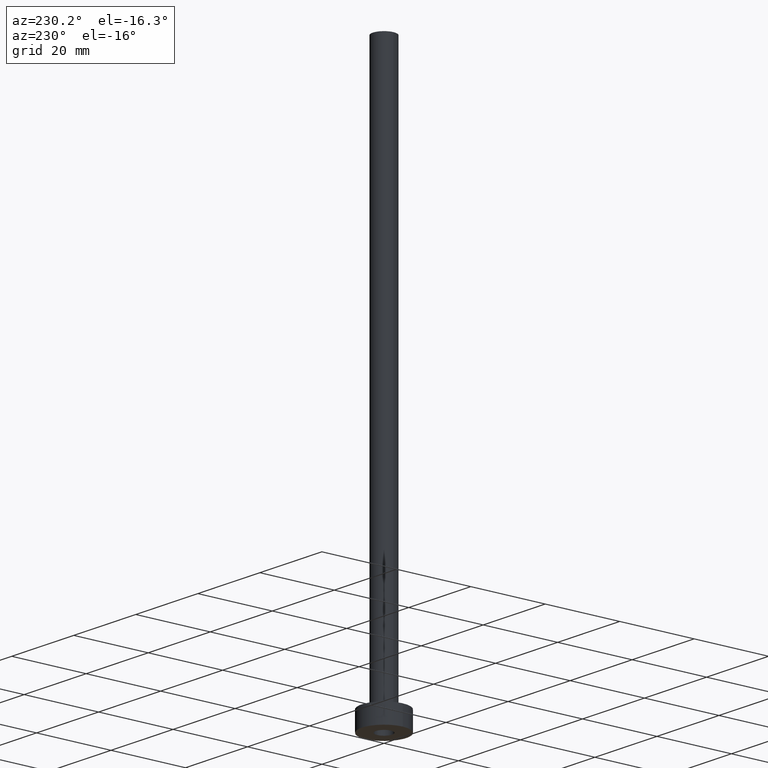
[diagram: clean part render]
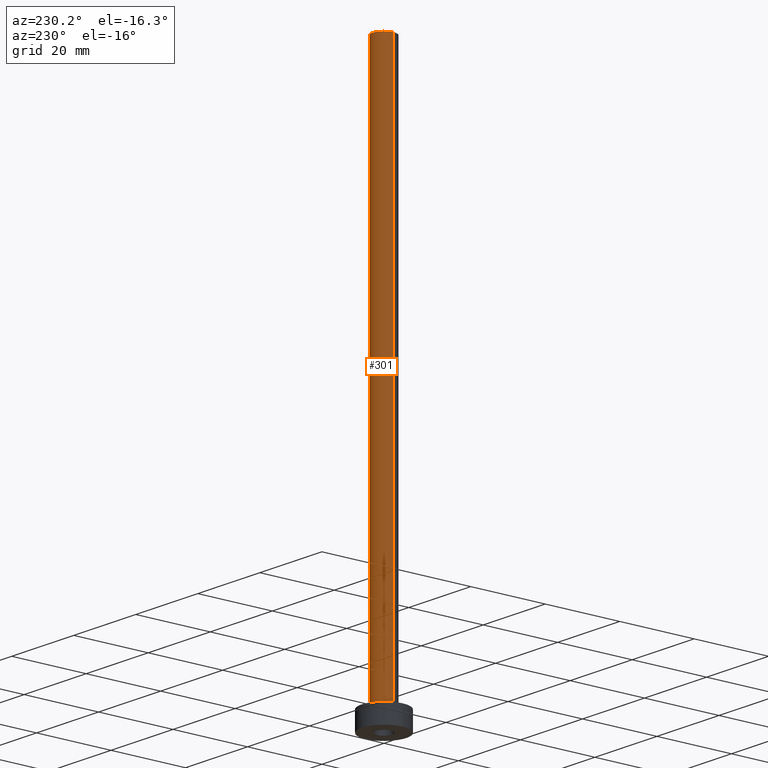
[diagram: same view with one face highlighted and labeled with its STEP entity id]
A machine part, auxiliary view. The second image highlights one B-rep face of the part: STEP entity #301.
In plain terms, the highlighted cylindrical surface (edge-blend (fillet) strip) has radius 3 mm, axis along (-0, -0, -1).
Its self-contained STEP definition (entity closure, byte-faithful):
#11 = CARTESIAN_POINT ( 'NONE',  ( 0.000000000000000000, 0.000000000000000000, 150.0000000000000000 ) ) ;
#25 = ORIENTED_EDGE ( 'NONE', *, *, #188, .T. ) ;
#37 = CARTESIAN_POINT ( 'NONE',  ( -3.000000000000000444, 0.000000000000000000, 5.500000000000005329 ) ) ;
#45 = CYLINDRICAL_SURFACE ( 'NONE', #158, 3.000000000000000444 ) ;
#56 = DIRECTION ( 'NONE',  ( 0.000000000000000000, 0.000000000000000000, 1.000000000000000000 ) ) ;
#57 = VERTEX_POINT ( 'NONE', #37 ) ;
#69 = DIRECTION ( 'NONE',  ( -0.000000000000000000, -0.000000000000000000, -1.000000000000000000 ) ) ;
#87 = CARTESIAN_POINT ( 'NONE',  ( -3.000000000000000444, 0.000000000000000000, 150.0000000000000000 ) ) ;
#119 = VERTEX_POINT ( 'NONE', #267 ) ;
#142 = CIRCLE ( 'NONE', #230, 3.000000000000000444 ) ;
#158 = AXIS2_PLACEMENT_3D ( 'NONE', #11, #311, #305 ) ;
#164 = AXIS2_PLACEMENT_3D ( 'NONE', #286, #404, #432 ) ;
#188 = EDGE_CURVE ( 'NONE', #271, #57, #142, .T. ) ;
#202 = LINE ( 'NONE', #280, #222 ) ;
#207 = CARTESIAN_POINT ( 'NONE',  ( -3.000000000000000444, 0.000000000000000000, 150.0000000000000000 ) ) ;
#218 = DIRECTION ( 'NONE',  ( 1.000000000000000000, 0.000000000000000000, 0.000000000000000000 ) ) ;
#220 = EDGE_CURVE ( 'NONE', #119, #271, #202, .T. ) ;
#222 = VECTOR ( 'NONE', #69, 1000.000000000000000 ) ;
#230 = AXIS2_PLACEMENT_3D ( 'NONE', #306, #56, #218 ) ;
#247 = EDGE_CURVE ( 'NONE', #119, #261, #292, .T. ) ;
#261 = VERTEX_POINT ( 'NONE', #207 ) ;
#267 = CARTESIAN_POINT ( 'NONE',  ( 3.000000000000000444, 3.673940397442060361E-16, 150.0000000000000000 ) ) ;
#271 = VERTEX_POINT ( 'NONE', #437 ) ;
#280 = CARTESIAN_POINT ( 'NONE',  ( 3.000000000000000444, 3.673940397442060361E-16, 150.0000000000000000 ) ) ;
#286 = CARTESIAN_POINT ( 'NONE',  ( 0.000000000000000000, 0.000000000000000000, 150.0000000000000000 ) ) ;
#292 = CIRCLE ( 'NONE', #164, 3.000000000000000444 ) ;
#301 = ADVANCED_FACE ( 'NONE', ( #434 ), #45, .T. ) ;
#305 = DIRECTION ( 'NONE',  ( -1.000000000000000000, 0.000000000000000000, 0.000000000000000000 ) ) ;
#306 = CARTESIAN_POINT ( 'NONE',  ( 0.000000000000000000, 0.000000000000000000, 5.500000000000005329 ) ) ;
#308 = DIRECTION ( 'NONE',  ( -0.000000000000000000, -0.000000000000000000, -1.000000000000000000 ) ) ;
#311 = DIRECTION ( 'NONE',  ( -0.000000000000000000, -0.000000000000000000, -1.000000000000000000 ) ) ;
#329 = EDGE_LOOP ( 'NONE', ( #368, #436, #25, #373 ) ) ;
#333 = LINE ( 'NONE', #87, #412 ) ;
#338 = EDGE_CURVE ( 'NONE', #261, #57, #333, .T. ) ;
#368 = ORIENTED_EDGE ( 'NONE', *, *, #247, .F. ) ;
#373 = ORIENTED_EDGE ( 'NONE', *, *, #338, .F. ) ;
#404 = DIRECTION ( 'NONE',  ( 0.000000000000000000, 0.000000000000000000, 1.000000000000000000 ) ) ;
#412 = VECTOR ( 'NONE', #308, 1000.000000000000000 ) ;
#432 = DIRECTION ( 'NONE',  ( 1.000000000000000000, 0.000000000000000000, 0.000000000000000000 ) ) ;
#434 = FACE_OUTER_BOUND ( 'NONE', #329, .T. ) ;
#436 = ORIENTED_EDGE ( 'NONE', *, *, #220, .T. ) ;
#437 = CARTESIAN_POINT ( 'NONE',  ( 3.000000000000000444, 3.673940397442060361E-16, 5.500000000000005329 ) ) ;